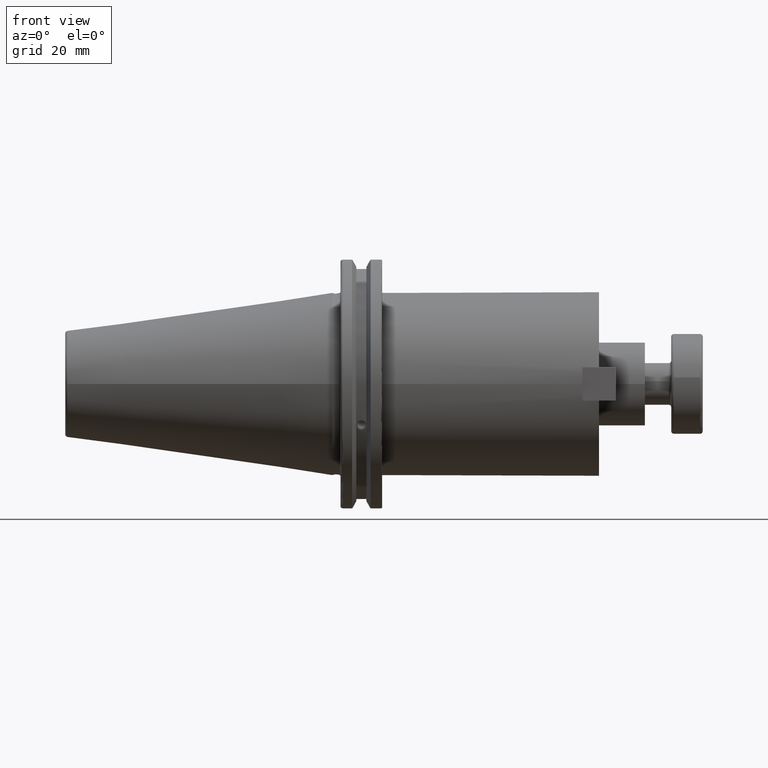
[diagram: clean part render]
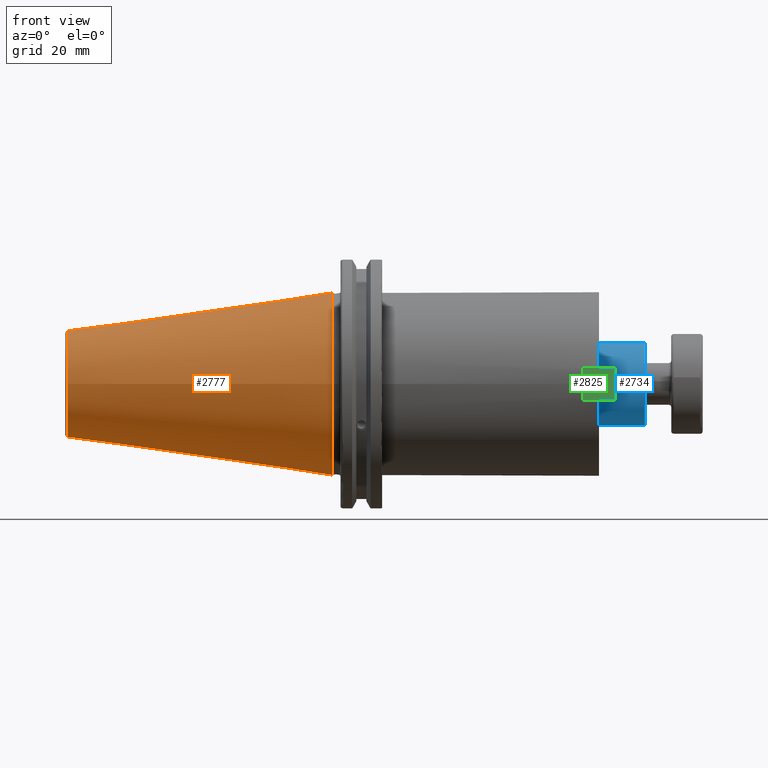
[diagram: same view with three faces highlighted in distinct colors, each labeled with its STEP entity id]
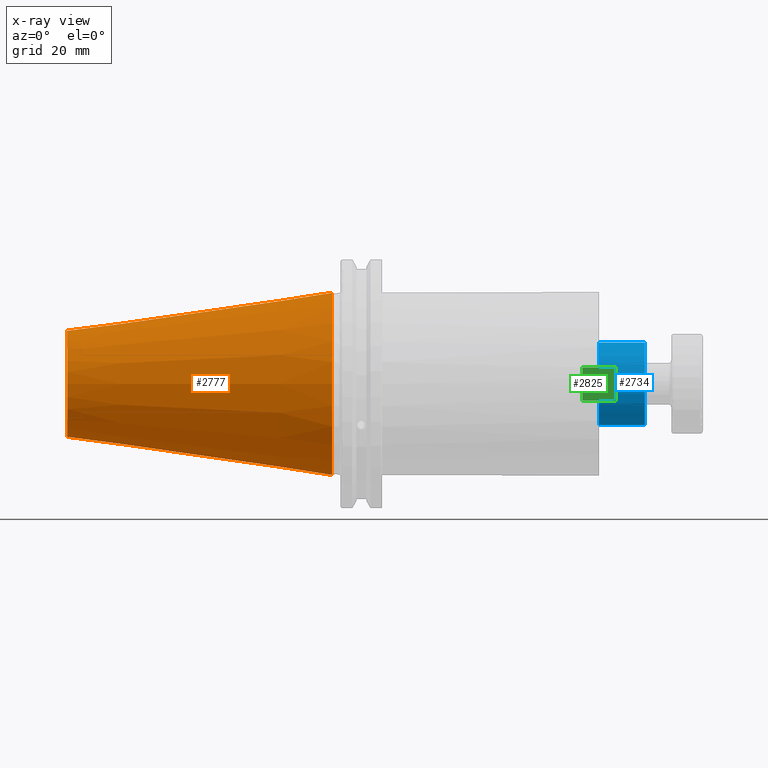
[diagram: x-ray of the same camera — body ghosted, the three highlighted faces saturated]
A machine part, front view with three faces highlighted in distinct colors.
The next image is the same camera in x-ray (body ghosted, the three faces saturated) — at least one of them is partly hidden behind the body in this view.
Their STEP definitions:

[orange] entity #2777 — the highlighted conical surface has half-angle 8.297 deg.
#562=CONICAL_SURFACE('',#3139,27.5166666666666,0.14481249823894);
#660=CIRCLE('',#3133,20.233121911427);
#661=CIRCLE('',#3134,20.233121911427);
#665=CIRCLE('',#3140,34.925);
#795=FACE_OUTER_BOUND('',#954,.T.);
#954=EDGE_LOOP('',(#2299,#2300,#2301,#2302,#2303));
#1132=LINE('',#5051,#1298);
#1298=VECTOR('',#3693,27.5166666666666);
#1522=VERTEX_POINT('',#5038);
#1523=VERTEX_POINT('',#5039);
#1526=VERTEX_POINT('',#5049);
#1808=EDGE_CURVE('',#1522,#1523,#660,.T.);
#1809=EDGE_CURVE('',#1523,#1522,#661,.T.);
#1813=EDGE_CURVE('',#1526,#1526,#665,.T.);
#1814=EDGE_CURVE('',#1526,#1523,#1132,.T.);
#2299=ORIENTED_EDGE('',*,*,#1813,.F.);
#2300=ORIENTED_EDGE('',*,*,#1814,.T.);
#2301=ORIENTED_EDGE('',*,*,#1808,.F.);
#2302=ORIENTED_EDGE('',*,*,#1809,.F.);
#2303=ORIENTED_EDGE('',*,*,#1814,.F.);
#2777=ADVANCED_FACE('',(#795),#562,.T.);
#3133=AXIS2_PLACEMENT_3D('',#5040,#3677,#3678);
#3134=AXIS2_PLACEMENT_3D('',#5041,#3679,#3680);
#3139=AXIS2_PLACEMENT_3D('',#5048,#3689,#3690);
#3140=AXIS2_PLACEMENT_3D('',#5050,#3691,#3692);
#3677=DIRECTION('center_axis',(-1.,0.,0.));
#3678=DIRECTION('ref_axis',(0.,-1.,3.06161699786838E-17));
#3679=DIRECTION('center_axis',(-1.,0.,0.));
#3680=DIRECTION('ref_axis',(0.,-1.,3.06161699786838E-17));
#3689=DIRECTION('center_axis',(1.,0.,0.));
#3690=DIRECTION('ref_axis',(0.,1.,0.));
#3691=DIRECTION('center_axis',(1.,0.,0.));
#3692=DIRECTION('ref_axis',(0.,0.,-1.));
#3693=DIRECTION('',(-0.989532981063281,0.144306893071729,1.76724974695192E-17));
#5038=CARTESIAN_POINT('',(-100.744306893072,-2.47784279855872E-15,20.233121911427));
#5039=CARTESIAN_POINT('',(-100.744306893072,-20.233121911427,-2.47784279855872E-15));
#5040=CARTESIAN_POINT('Origin',(-100.744306893072,0.,-3.09730349819841E-15));
#5041=CARTESIAN_POINT('Origin',(-100.744306893072,0.,-3.09730349819841E-15));
#5048=CARTESIAN_POINT('Origin',(-50.8,0.,0.));
#5049=CARTESIAN_POINT('',(-8.88178419700125E-15,-34.925,-4.27707894602213E-15));
#5050=CARTESIAN_POINT('Origin',(0.,0.,0.));
#5051=CARTESIAN_POINT('',(-50.8,-27.5166666666666,-3.3698197756538E-15));

[blue] entity #2734 — the highlighted cylindrical surface (bore or boss wall) has radius 15.875 mm, axis along (1, 0, 0).
#525=CYLINDRICAL_SURFACE('',#3053,15.875);
#620=CIRCLE('',#3046,15.875);
#623=CIRCLE('',#3052,15.875);
#752=FACE_OUTER_BOUND('',#898,.T.);
#898=EDGE_LOOP('',(#2045,#2046,#2047,#2048));
#1064=LINE('',#4332,#1230);
#1230=VECTOR('',#3451,15.875);
#1404=VERTEX_POINT('',#4319);
#1407=VERTEX_POINT('',#4329);
#1650=EDGE_CURVE('',#1404,#1404,#620,.T.);
#1654=EDGE_CURVE('',#1407,#1407,#623,.T.);
#1655=EDGE_CURVE('',#1404,#1407,#1064,.T.);
#2045=ORIENTED_EDGE('',*,*,#1650,.F.);
#2046=ORIENTED_EDGE('',*,*,#1655,.T.);
#2047=ORIENTED_EDGE('',*,*,#1654,.T.);
#2048=ORIENTED_EDGE('',*,*,#1655,.F.);
#2734=ADVANCED_FACE('',(#752),#525,.T.);
#3046=AXIS2_PLACEMENT_3D('',#4320,#3434,#3435);
#3052=AXIS2_PLACEMENT_3D('',#4330,#3447,#3448);
#3053=AXIS2_PLACEMENT_3D('',#4331,#3449,#3450);
#3434=DIRECTION('center_axis',(1.,0.,0.));
#3435=DIRECTION('ref_axis',(0.,0.,-1.));
#3447=DIRECTION('center_axis',(1.,0.,0.));
#3448=DIRECTION('ref_axis',(0.,0.,-1.));
#3449=DIRECTION('center_axis',(1.,0.,0.));
#3450=DIRECTION('ref_axis',(0.,1.,0.));
#3451=DIRECTION('',(-1.,0.,0.));
#4319=CARTESIAN_POINT('',(119.08,-15.875,-1.94412679364642E-15));
#4320=CARTESIAN_POINT('Origin',(119.08,0.,0.));
#4329=CARTESIAN_POINT('',(101.6,-15.875,-1.94412679364642E-15));
#4330=CARTESIAN_POINT('Origin',(101.6,0.,0.));
#4331=CARTESIAN_POINT('Origin',(110.34,0.,0.));
#4332=CARTESIAN_POINT('',(110.34,-15.875,-1.94412679364642E-15));

[green] entity #2825 — the highlighted planar face has unit normal (0, -1, 0).
#843=FACE_OUTER_BOUND('',#1007,.T.);
#1007=EDGE_LOOP('',(#2515,#2516,#2517,#2518));
#1169=LINE('',#5441,#1335);
#1170=LINE('',#5444,#1336);
#1171=LINE('',#5446,#1337);
#1172=LINE('',#5447,#1338);
#1335=VECTOR('',#3924,10.);
#1336=VECTOR('',#3927,10.);
#1337=VECTOR('',#3928,10.);
#1338=VECTOR('',#3929,10.);
#1562=VERTEX_POINT('',#5434);
#1565=VERTEX_POINT('',#5439);
#1566=VERTEX_POINT('',#5443);
#1567=VERTEX_POINT('',#5445);
#1888=EDGE_CURVE('',#1562,#1565,#1169,.T.);
#1889=EDGE_CURVE('',#1566,#1562,#1170,.T.);
#1890=EDGE_CURVE('',#1567,#1565,#1171,.T.);
#1891=EDGE_CURVE('',#1566,#1567,#1172,.T.);
#2515=ORIENTED_EDGE('',*,*,#1889,.T.);
#2516=ORIENTED_EDGE('',*,*,#1888,.T.);
#2517=ORIENTED_EDGE('',*,*,#1890,.F.);
#2518=ORIENTED_EDGE('',*,*,#1891,.F.);
#2695=PLANE('',#3238);
#2825=ADVANCED_FACE('',(#843),#2695,.T.);
#3238=AXIS2_PLACEMENT_3D('',#5442,#3925,#3926);
#3924=DIRECTION('',(0.,1.,0.));
#3925=DIRECTION('center_axis',(-1.74838271594513E-16,0.,-1.));
#3926=DIRECTION('ref_axis',(-1.,0.,1.74838271594513E-16));
#3927=DIRECTION('',(-1.,0.,1.74838271594513E-16));
#3928=DIRECTION('',(-1.,0.,1.74838271594513E-16));
#3929=DIRECTION('',(0.,1.,0.));
#5434=CARTESIAN_POINT('',(-6.35,0.,-6.35));
#5439=CARTESIAN_POINT('',(-6.35,12.7,-6.35));
#5441=CARTESIAN_POINT('',(-6.35,0.,-6.35));
#5442=CARTESIAN_POINT('Origin',(6.35,0.,-6.35));
#5443=CARTESIAN_POINT('',(6.35,0.,-6.35));
#5444=CARTESIAN_POINT('',(6.35,0.,-6.35));
#5445=CARTESIAN_POINT('',(6.35,12.7,-6.35));
#5446=CARTESIAN_POINT('',(6.35,12.7,-6.35));
#5447=CARTESIAN_POINT('',(6.35,0.,-6.35));